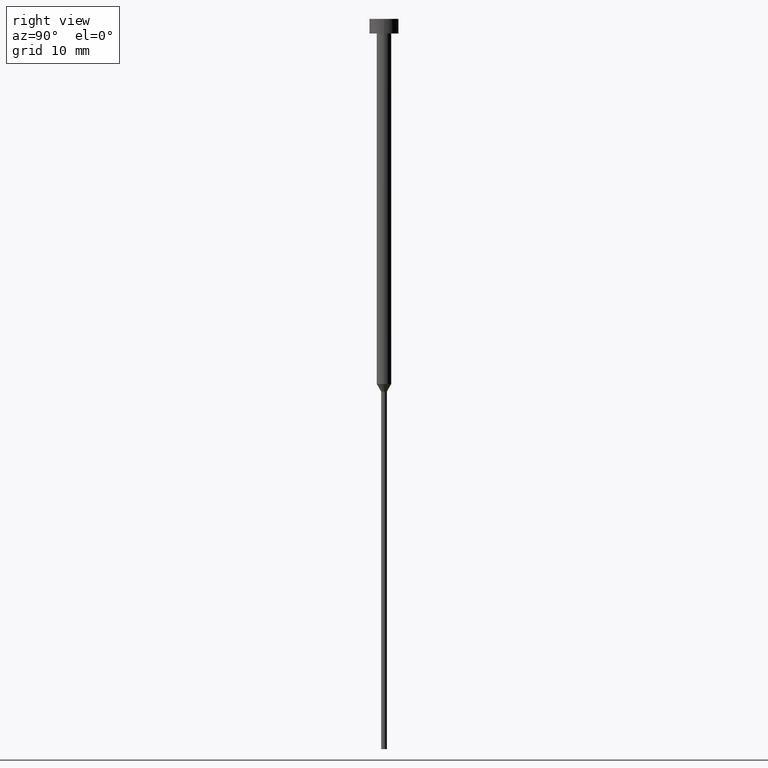
[diagram: clean part render]
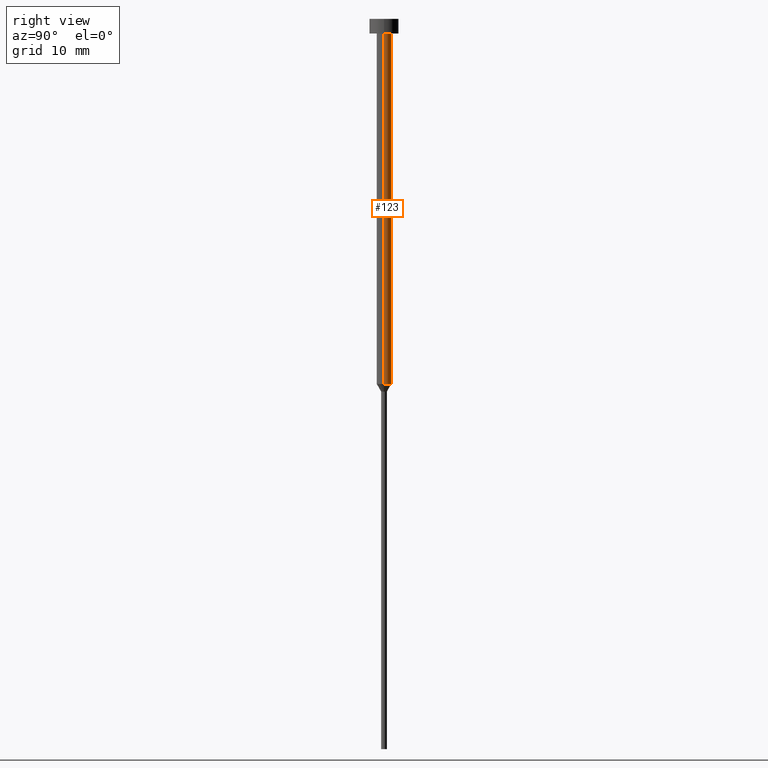
[diagram: same view with one face highlighted and labeled with its STEP entity id]
A machine part, right view. The second image highlights one B-rep face of the part: STEP entity #123.
In plain terms, the highlighted cylindrical surface (edge-blend (fillet) strip) has radius 1 mm, axis along (-0, -0, 1).
Its self-contained STEP definition (entity closure, byte-faithful):
#1 = CARTESIAN_POINT ( 'NONE',  ( -1.000000000000003109, 1.224646799147356905E-16, -50.00000000000000000 ) ) ;
#11 = VERTEX_POINT ( 'NONE', #146 ) ;
#18 = DIRECTION ( 'NONE',  ( -0.000000000000000000, -0.000000000000000000, 1.000000000000000000 ) ) ;
#21 = CIRCLE ( 'NONE', #319, 1.000000000000003109 ) ;
#23 = LINE ( 'NONE', #238, #232 ) ;
#28 = ORIENTED_EDGE ( 'NONE', *, *, #215, .F. ) ;
#35 = VERTEX_POINT ( 'NONE', #285 ) ;
#48 = DIRECTION ( 'NONE',  ( 1.000000000000000000, 0.000000000000000000, 0.000000000000000000 ) ) ;
#51 = CARTESIAN_POINT ( 'NONE',  ( 0.000000000000000000, 0.000000000000000000, 0.000000000000000000 ) ) ;
#52 = DIRECTION ( 'NONE',  ( -0.000000000000000000, -0.000000000000000000, 1.000000000000000000 ) ) ;
#59 = EDGE_LOOP ( 'NONE', ( #117, #64, #28, #195 ) ) ;
#64 = ORIENTED_EDGE ( 'NONE', *, *, #91, .T. ) ;
#70 = AXIS2_PLACEMENT_3D ( 'NONE', #51, #263, #48 ) ;
#74 = DIRECTION ( 'NONE',  ( -0.000000000000000000, -0.000000000000000000, 1.000000000000000000 ) ) ;
#77 = CYLINDRICAL_SURFACE ( 'NONE', #70, 1.000000000000003331 ) ;
#83 = VERTEX_POINT ( 'NONE', #288 ) ;
#87 = CARTESIAN_POINT ( 'NONE',  ( 0.000000000000000000, 0.000000000000000000, -50.00000000000000000 ) ) ;
#91 = EDGE_CURVE ( 'NONE', #278, #35, #23, .T. ) ;
#117 = ORIENTED_EDGE ( 'NONE', *, *, #221, .T. ) ;
#123 = ADVANCED_FACE ( 'NONE', ( #318 ), #77, .T. ) ;
#125 = AXIS2_PLACEMENT_3D ( 'NONE', #243, #18, #286 ) ;
#146 = CARTESIAN_POINT ( 'NONE',  ( 1.000000000000003109, 0.000000000000000000, -50.00000000000000000 ) ) ;
#151 = LINE ( 'NONE', #301, #192 ) ;
#192 = VECTOR ( 'NONE', #74, 1000.000000000000000 ) ;
#195 = ORIENTED_EDGE ( 'NONE', *, *, #289, .F. ) ;
#215 = EDGE_CURVE ( 'NONE', #83, #35, #259, .T. ) ;
#221 = EDGE_CURVE ( 'NONE', #11, #278, #21, .T. ) ;
#232 = VECTOR ( 'NONE', #52, 1000.000000000000000 ) ;
#234 = DIRECTION ( 'NONE',  ( -0.000000000000000000, -0.000000000000000000, 1.000000000000000000 ) ) ;
#238 = CARTESIAN_POINT ( 'NONE',  ( -1.000000000000003331, 1.224646799147357151E-16, 0.000000000000000000 ) ) ;
#243 = CARTESIAN_POINT ( 'NONE',  ( 0.000000000000000000, 0.000000000000000000, -2.000000000000000444 ) ) ;
#259 = CIRCLE ( 'NONE', #125, 1.000000000000003553 ) ;
#263 = DIRECTION ( 'NONE',  ( -0.000000000000000000, -0.000000000000000000, 1.000000000000000000 ) ) ;
#278 = VERTEX_POINT ( 'NONE', #1 ) ;
#285 = CARTESIAN_POINT ( 'NONE',  ( -1.000000000000003553, 1.224646799147357398E-16, -2.000000000000000444 ) ) ;
#286 = DIRECTION ( 'NONE',  ( 1.000000000000000000, 0.000000000000000000, 0.000000000000000000 ) ) ;
#287 = DIRECTION ( 'NONE',  ( 1.000000000000000000, 0.000000000000000000, 0.000000000000000000 ) ) ;
#288 = CARTESIAN_POINT ( 'NONE',  ( 1.000000000000003553, 0.000000000000000000, -2.000000000000000444 ) ) ;
#289 = EDGE_CURVE ( 'NONE', #11, #83, #151, .T. ) ;
#301 = CARTESIAN_POINT ( 'NONE',  ( 1.000000000000003331, 0.000000000000000000, 0.000000000000000000 ) ) ;
#318 = FACE_OUTER_BOUND ( 'NONE', #59, .T. ) ;
#319 = AXIS2_PLACEMENT_3D ( 'NONE', #87, #234, #287 ) ;